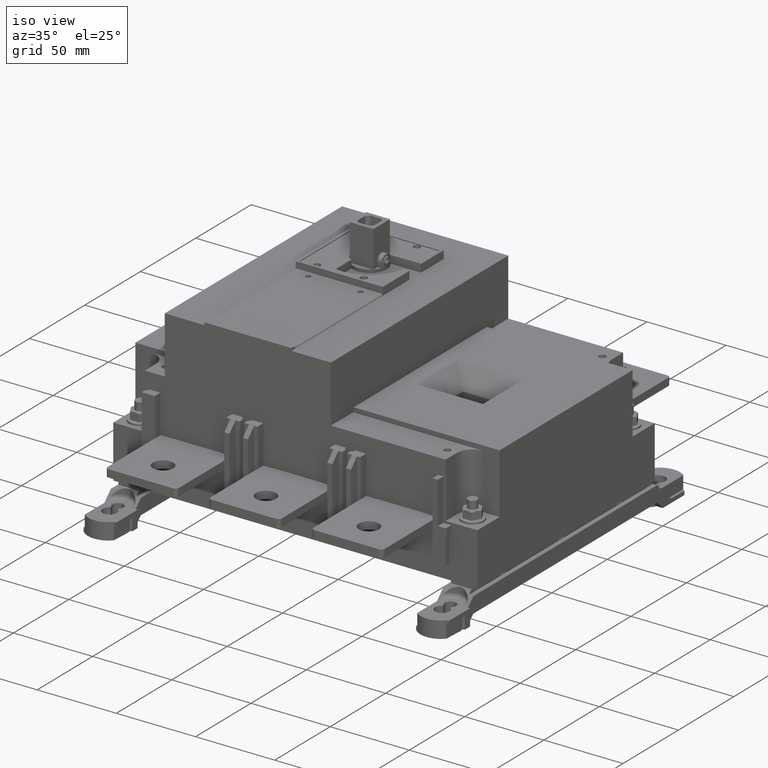
[diagram: clean part render]
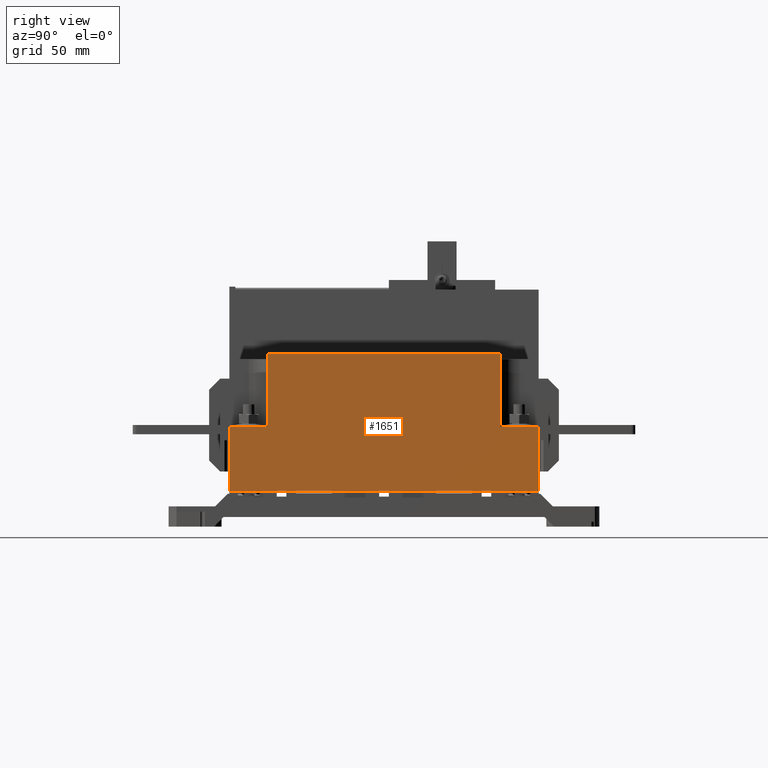
[diagram: tour spotlight — one face highlighted and labeled with its STEP entity id]
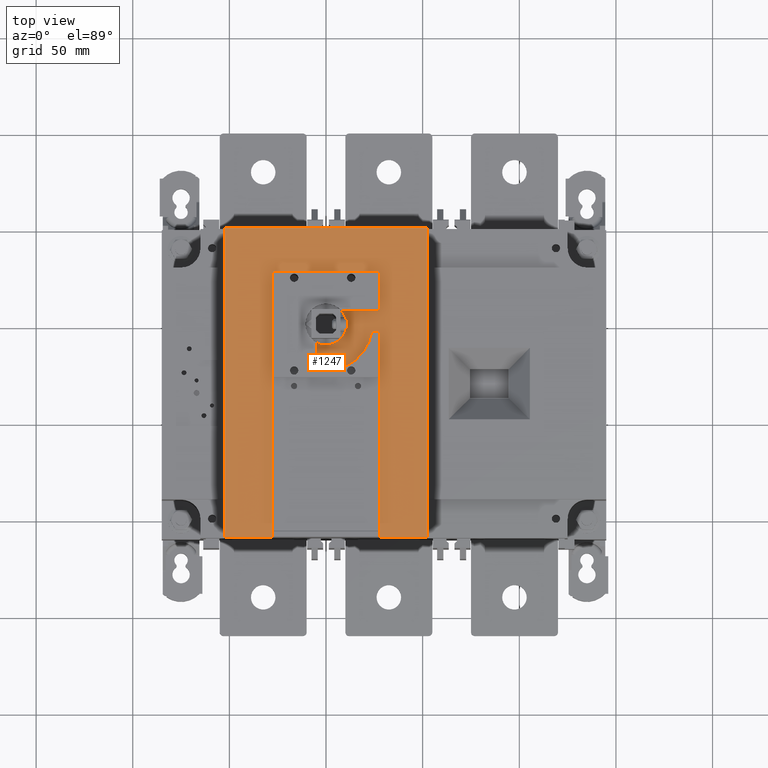
[diagram: tour spotlight — one face highlighted and labeled with its STEP entity id]
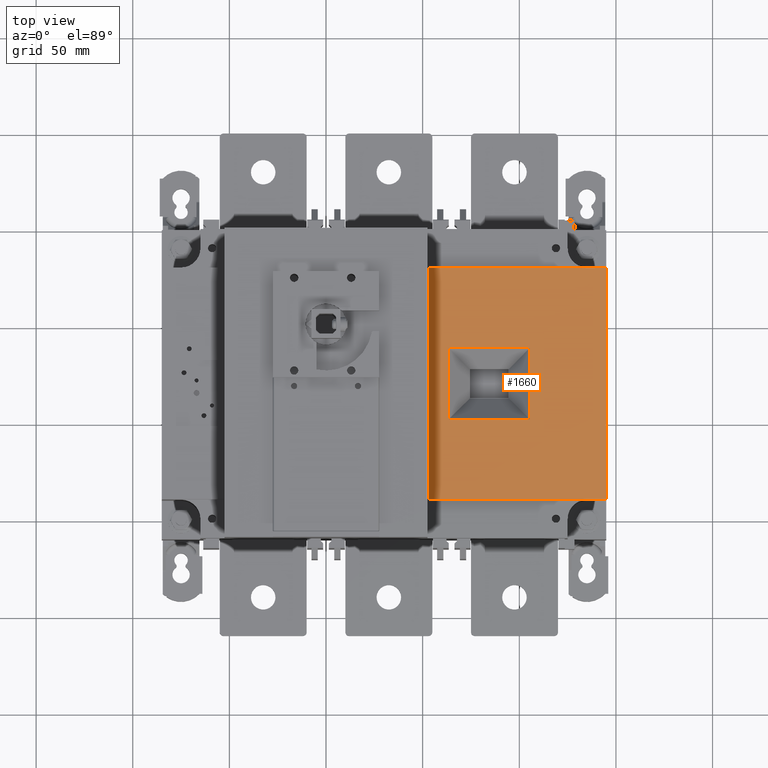
[diagram: tour spotlight — one face highlighted and labeled with its STEP entity id]
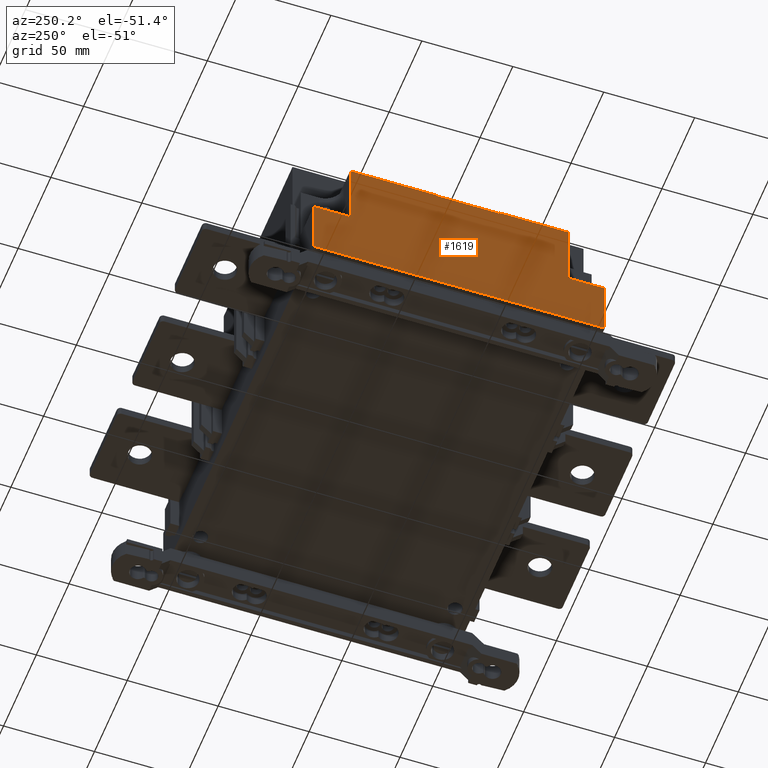
[diagram: tour spotlight — one face highlighted and labeled with its STEP entity id]
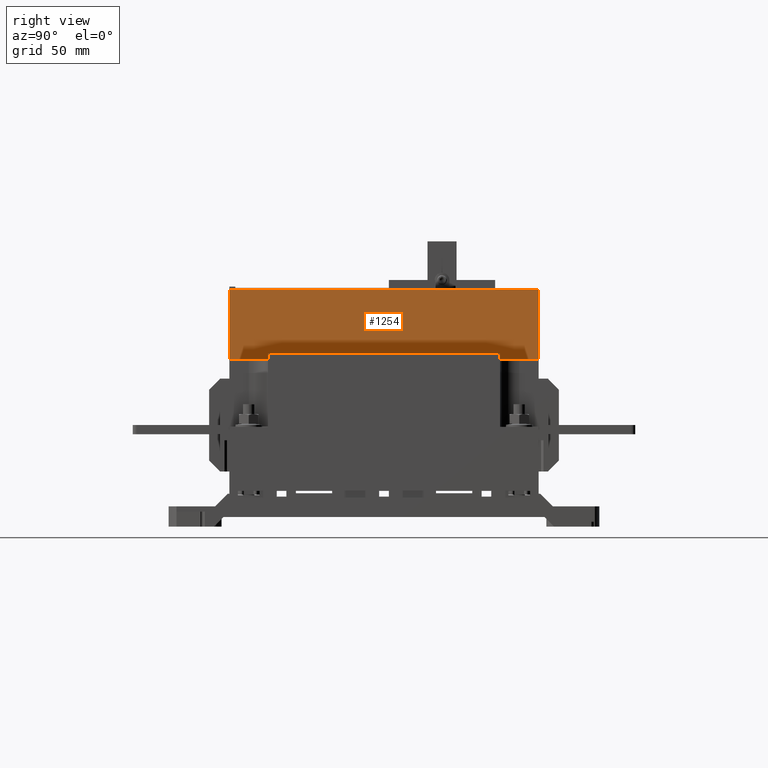
[diagram: tour spotlight — one face highlighted and labeled with its STEP entity id]
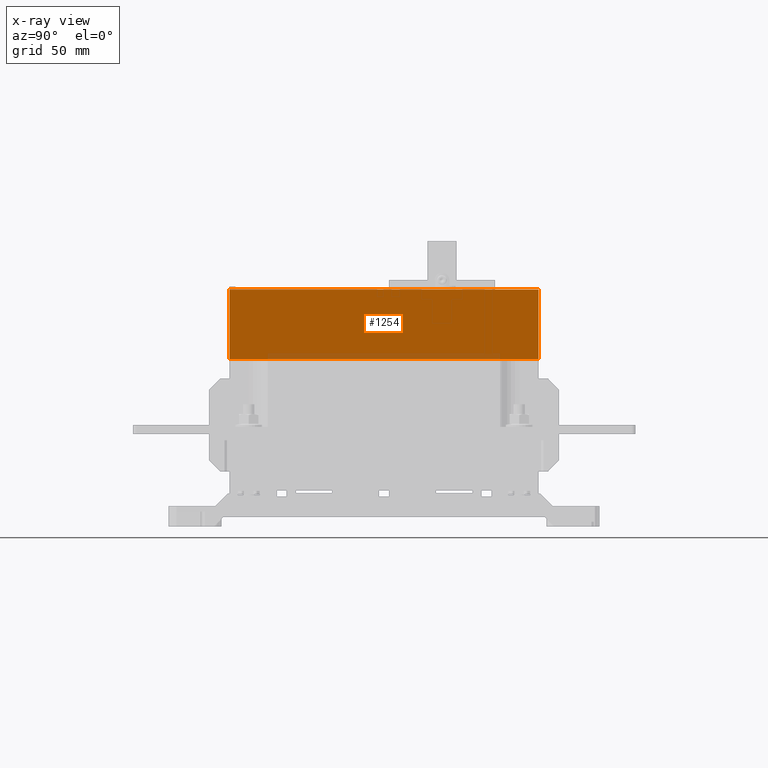
[diagram: x-ray of the same camera — body ghosted, this tour face saturated]
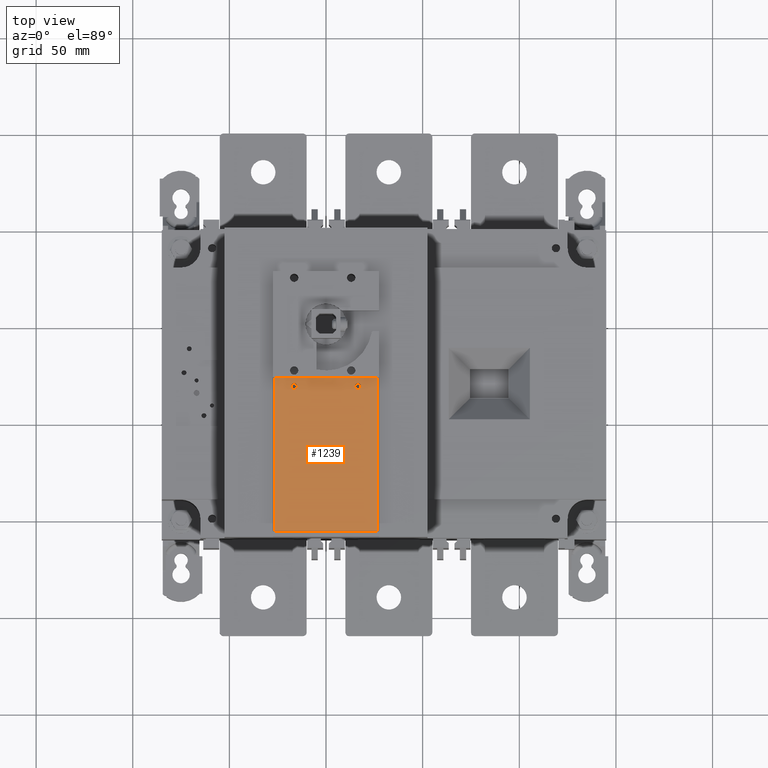
[diagram: tour spotlight — one face highlighted and labeled with its STEP entity id]
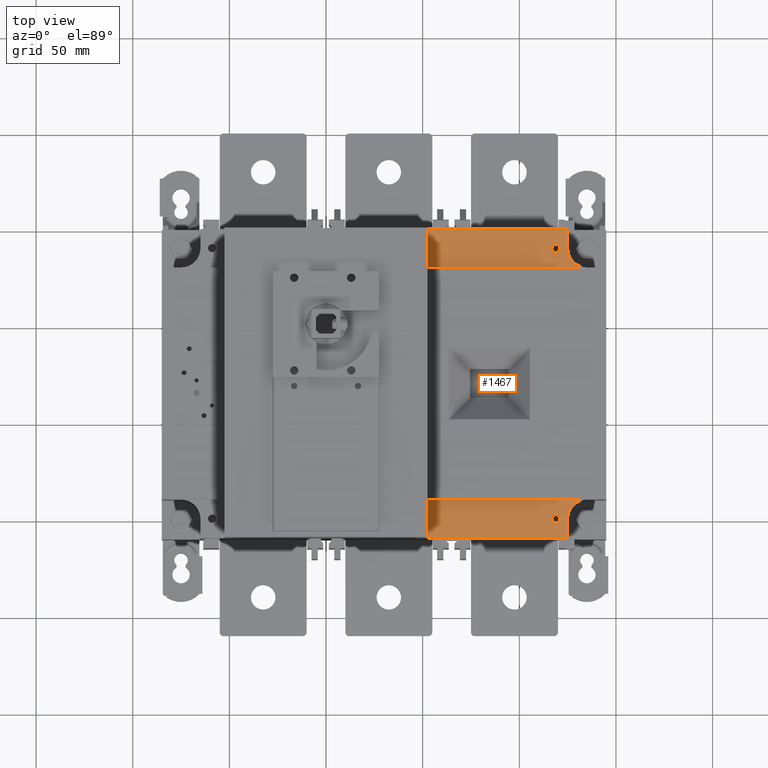
[diagram: tour spotlight — one face highlighted and labeled with its STEP entity id]
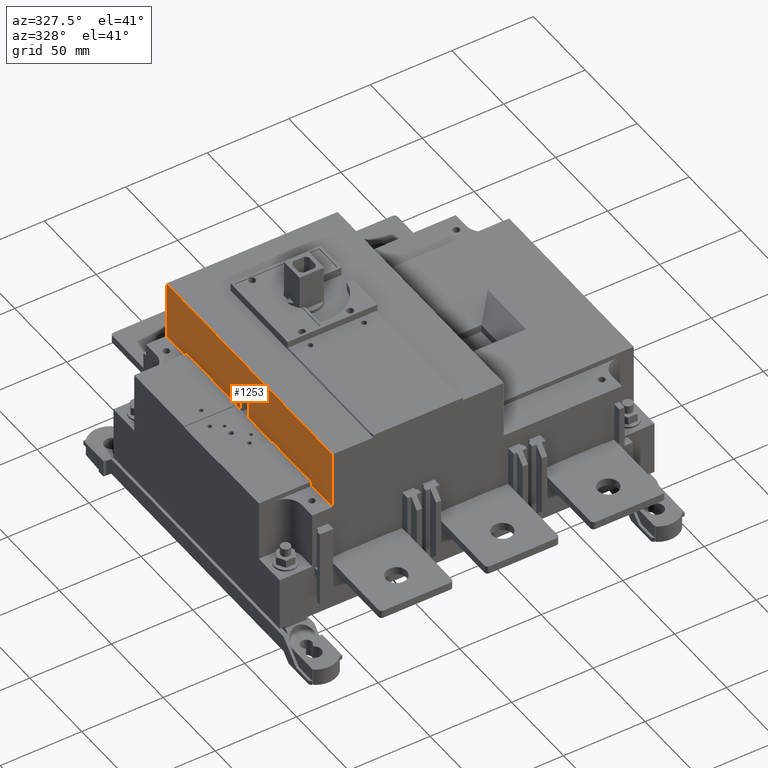
[diagram: tour spotlight — one face highlighted and labeled with its STEP entity id]
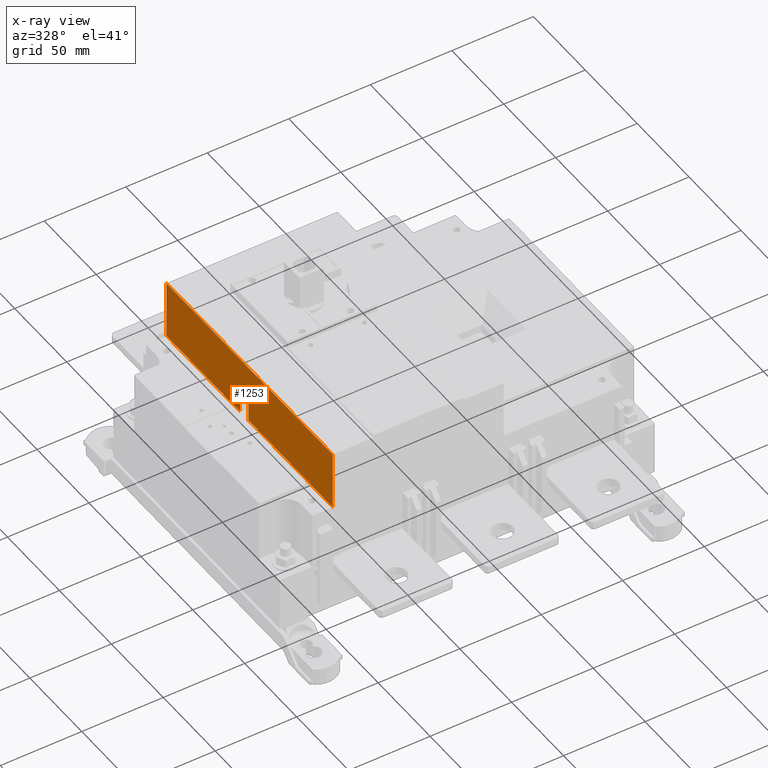
[diagram: x-ray of the same camera — body ghosted, this tour face saturated]
A machine part: a face-by-face anatomy tour. The part has 830 B-rep faces; the first image is the clean iso view, then the 8 largest visible faces are spotlighted one at a time (largest first), each with its STEP entity span.

Face 1 — right view, entity #1651. In plain terms, the highlighted planar face has unit normal (1, 0, 0).
Definition (entity closure, byte-faithful):
#1651=ADVANCED_FACE('',(#2857),#2244,.T.);
#2244=PLANE('',#15998);
#2857=FACE_OUTER_BOUND('',#3858,.T.);
#3858=EDGE_LOOP('',(#7819,#7820,#7821,#7822,#7823,#7824,#7825,#7826));
#7819=ORIENTED_EDGE('',*,*,#10642,.T.);
#7820=ORIENTED_EDGE('',*,*,#11098,.T.);
#7821=ORIENTED_EDGE('',*,*,#10747,.F.);
#7822=ORIENTED_EDGE('',*,*,#11708,.T.);
#7823=ORIENTED_EDGE('',*,*,#11673,.F.);
#7824=ORIENTED_EDGE('',*,*,#11709,.T.);
#7825=ORIENTED_EDGE('',*,*,#11680,.T.);
#7826=ORIENTED_EDGE('',*,*,#11705,.F.);
#9062=VERTEX_POINT('',#22040);
#9063=VERTEX_POINT('',#22042);
#9136=VERTEX_POINT('',#22244);
#9137=VERTEX_POINT('',#22246);
#9759=VERTEX_POINT('',#24288);
#9760=VERTEX_POINT('',#24289);
#9764=VERTEX_POINT('',#24300);
#9765=VERTEX_POINT('',#24302);
#10642=EDGE_CURVE('',#9063,#9062,#12375,.T.);
#10747=EDGE_CURVE('',#9136,#9137,#12475,.T.);
#11098=EDGE_CURVE('',#9062,#9137,#12716,.T.);
#11673=EDGE_CURVE('',#9759,#9760,#13198,.T.);
#11680=EDGE_CURVE('',#9765,#9764,#13205,.T.);
#11705=EDGE_CURVE('',#9063,#9764,#13229,.T.);
#11708=EDGE_CURVE('',#9136,#9760,#13231,.T.);
#11709=EDGE_CURVE('',#9759,#9765,#13232,.T.);
#12375=LINE('',#22041,#13803);
#12475=LINE('',#22245,#13903);
#12716=LINE('',#23110,#14144);
#13198=LINE('',#24287,#14626);
#13205=LINE('',#24301,#14633);
#13229=LINE('',#24352,#14657);
#13231=LINE('',#24359,#14659);
#13232=LINE('',#24360,#14660);
#13803=VECTOR('',#17593,1.);
#13903=VECTOR('',#17753,1.);
#14144=VECTOR('',#18432,1.);
#14626=VECTOR('',#19580,1.);
#14633=VECTOR('',#19589,1.);
#14657=VECTOR('',#19637,1.);
#14659=VECTOR('',#19647,1.);
#14660=VECTOR('',#19648,1.);
#15998=AXIS2_PLACEMENT_3D('',#24361,#19649,#19650);
#17593=DIRECTION('',(0.,0.,-1.));
#17753=DIRECTION('',(0.,0.,-1.));
#18432=DIRECTION('',(0.,1.,0.));
#19580=DIRECTION('',(0.,0.,-1.));
#19589=DIRECTION('',(0.,0.,-1.));
#19637=DIRECTION('',(0.,1.,0.));
#19647=DIRECTION('',(0.,-1.,0.));
#19648=DIRECTION('',(0.,-1.,0.));
#19649=DIRECTION('',(1.,0.,0.));
#19650=DIRECTION('',(0.,1.,0.));
#22040=CARTESIAN_POINT('',(145.,-110.000000000001,-108.500000000001));
#22041=CARTESIAN_POINT('',(145.,-110.,-70.2500000000012));
#22042=CARTESIAN_POINT('',(145.,-110.,-75.4000000000012));
#22244=CARTESIAN_POINT('',(145.,50.,-75.4000000000012));
#22245=CARTESIAN_POINT('',(145.,50.,-70.2500000000012));
#22246=CARTESIAN_POINT('',(145.,50.0000000000009,-108.500000000001));
#23110=CARTESIAN_POINT('',(145.,-101.,-108.500000000001));
#24287=CARTESIAN_POINT('',(145.,30.,-70.2500000000012));
#24288=CARTESIAN_POINT('',(145.,30.,-37.4000000000012));
#24289=CARTESIAN_POINT('',(145.,30.,-75.4000000000012));
#24300=CARTESIAN_POINT('',(145.,-89.9999999999999,-75.4000000000012));
#24301=CARTESIAN_POINT('',(145.,-89.9999999999999,-70.2500000000012));
#24302=CARTESIAN_POINT('',(145.,-90.,-37.4000000000012));
#24352=CARTESIAN_POINT('',(145.,-100.,-75.4000000000012));
#24359=CARTESIAN_POINT('',(145.,-107.5,-75.4000000000012));
#24360=CARTESIAN_POINT('',(145.,-11.5,-37.4000000000012));
#24361=CARTESIAN_POINT('',(145.,-107.5,-70.2500000000012));

Face 2 — top view, entity #1247. In plain terms, the highlighted planar face has unit normal (-0, -0, 1).
Definition (entity closure, byte-faithful):
#1247=ADVANCED_FACE('',(#2511),#1937,.T.);
#1937=PLANE('',#15402);
#2511=FACE_OUTER_BOUND('',#3379,.T.);
#3379=EDGE_LOOP('',(#5809,#5810,#5811,#5812,#5813,#5814,#5815,#5816,#5817,
#5818,#5819,#5820,#5821,#5822,#5823,#5824,#5825,#5826,#5827));
#4240=CIRCLE('',#15375,10.625);
#4253=CIRCLE('',#15400,24.);
#4254=CIRCLE('',#15401,1.);
#5809=ORIENTED_EDGE('',*,*,#10635,.F.);
#5810=ORIENTED_EDGE('',*,*,#10694,.F.);
#5811=ORIENTED_EDGE('',*,*,#10597,.F.);
#5812=ORIENTED_EDGE('',*,*,#10695,.F.);
#5813=ORIENTED_EDGE('',*,*,#10696,.T.);
#5814=ORIENTED_EDGE('',*,*,#10697,.T.);
#5815=ORIENTED_EDGE('',*,*,#10698,.T.);
#5816=ORIENTED_EDGE('',*,*,#10582,.T.);
#5817=ORIENTED_EDGE('',*,*,#10699,.T.);
#5818=ORIENTED_EDGE('',*,*,#10700,.F.);
#5819=ORIENTED_EDGE('',*,*,#10701,.T.);
#5820=ORIENTED_EDGE('',*,*,#10702,.F.);
#5821=ORIENTED_EDGE('',*,*,#10703,.T.);
#5822=ORIENTED_EDGE('',*,*,#10601,.T.);
#5823=ORIENTED_EDGE('',*,*,#10704,.F.);
#5824=ORIENTED_EDGE('',*,*,#10647,.T.);
#5825=ORIENTED_EDGE('',*,*,#10705,.F.);
#5826=ORIENTED_EDGE('',*,*,#10706,.T.);
#5827=ORIENTED_EDGE('',*,*,#10707,.T.);
#9010=VERTEX_POINT('',#21919);
#9011=VERTEX_POINT('',#21921);
#9025=VERTEX_POINT('',#21953);
#9026=VERTEX_POINT('',#21954);
#9027=VERTEX_POINT('',#21959);
#9028=VERTEX_POINT('',#21961);
#9054=VERTEX_POINT('',#22025);
#9056=VERTEX_POINT('',#22028);
#9067=VERTEX_POINT('',#22050);
#9068=VERTEX_POINT('',#22052);
#9114=VERTEX_POINT('',#22147);
#9115=VERTEX_POINT('',#22149);
#9116=VERTEX_POINT('',#22151);
#9117=VERTEX_POINT('',#22154);
#9118=VERTEX_POINT('',#22156);
#9119=VERTEX_POINT('',#22158);
#9120=VERTEX_POINT('',#22160);
#9121=VERTEX_POINT('',#22164);
#9122=VERTEX_POINT('',#22166);
#10582=EDGE_CURVE('',#9011,#9010,#4240,.T.);
#10597=EDGE_CURVE('',#9025,#9026,#12340,.T.);
#10601=EDGE_CURVE('',#9028,#9027,#12341,.T.);
#10635=EDGE_CURVE('',#9054,#9056,#12368,.T.);
#10647=EDGE_CURVE('',#9068,#9067,#12380,.T.);
#10694=EDGE_CURVE('',#9026,#9054,#12427,.T.);
#10695=EDGE_CURVE('',#9114,#9025,#12428,.T.);
#10696=EDGE_CURVE('',#9114,#9115,#12429,.T.);
#10697=EDGE_CURVE('',#9115,#9116,#12430,.T.);
#10698=EDGE_CURVE('',#9116,#9011,#12431,.T.);
#10699=EDGE_CURVE('',#9010,#9117,#12432,.T.);
#10700=EDGE_CURVE('',#9118,#9117,#4253,.T.);
#10701=EDGE_CURVE('',#9118,#9119,#4254,.T.);
#10702=EDGE_CURVE('',#9120,#9119,#12433,.T.);
#10703=EDGE_CURVE('',#9120,#9028,#12434,.T.);
#10704=EDGE_CURVE('',#9068,#9027,#12435,.T.);
#10705=EDGE_CURVE('',#9121,#9067,#12436,.T.);
#10706=EDGE_CURVE('',#9121,#9122,#12437,.T.);
#10707=EDGE_CURVE('',#9122,#9056,#12438,.T.);
#12340=LINE('',#21952,#13768);
#12341=LINE('',#21960,#13769);
#12368=LINE('',#22027,#13796);
#12380=LINE('',#22051,#13808);
#12427=LINE('',#22145,#13855);
#12428=LINE('',#22146,#13856);
#12429=LINE('',#22148,#13857);
#12430=LINE('',#22150,#13858);
#12431=LINE('',#22152,#13859);
#12432=LINE('',#22153,#13860);
#12433=LINE('',#22159,#13861);
#12434=LINE('',#22161,#13862);
#12435=LINE('',#22162,#13863);
#12436=LINE('',#22163,#13864);
#12437=LINE('',#22165,#13865);
#12438=LINE('',#22167,#13866);
#13768=VECTOR('',#17526,1.);
#13769=VECTOR('',#17535,1.);
#13796=VECTOR('',#17586,1.);
#13808=VECTOR('',#17598,1.);
#13855=VECTOR('',#17647,1.);
#13856=VECTOR('',#17648,1.);
#13857=VECTOR('',#17649,1.);
#13858=VECTOR('',#17650,1.);
#13859=VECTOR('',#17651,1.);
#13860=VECTOR('',#17652,1.);
#13861=VECTOR('',#17657,1.);
#13862=VECTOR('',#17658,1.);
#13863=VECTOR('',#17659,1.);
#13864=VECTOR('',#17660,1.);
#13865=VECTOR('',#17661,1.);
#13866=VECTOR('',#17662,1.);
#15375=AXIS2_PLACEMENT_3D('',#21920,#17500,#17501);
#15400=AXIS2_PLACEMENT_3D('',#22155,#17653,#17654);
#15401=AXIS2_PLACEMENT_3D('',#22157,#17655,#17656);
#15402=AXIS2_PLACEMENT_3D('',#22168,#17663,#17664);
#17500=DIRECTION('',(4.11996825544495E-016,1.14659099476019E-015,-1.));
#17501=DIRECTION('',(-1.,2.84251109024637E-015,-4.08170229641602E-016));
#17526=DIRECTION('',(-2.84251109024637E-015,-1.,-1.42125554512318E-015));
#17535=DIRECTION('',(-2.84251109024637E-015,-1.,-1.42125554512318E-015));
#17586=DIRECTION('',(-1.,2.84251109024637E-015,1.68155815718978E-044));
#17598=DIRECTION('',(1.,-2.84251109024637E-015,-1.68155815718978E-044));
#17647=DIRECTION('',(0.,-1.,0.));
#17648=DIRECTION('',(-2.84251109024637E-015,-1.,-1.42125554512318E-015));
#17649=DIRECTION('',(1.,-2.84251109024637E-015,0.));
#17650=DIRECTION('',(-2.84251109024637E-015,-1.,-1.42125554512318E-015));
#17651=DIRECTION('',(-1.,2.84251109024637E-015,0.));
#17652=DIRECTION('',(6.63139205322163E-015,-1.,-1.42125554512318E-015));
#17653=DIRECTION('',(4.0399346490868E-030,1.42125554512318E-015,-1.));
#17654=DIRECTION('',(-2.84251109024637E-015,-1.,-1.40946282423116E-015));
#17655=DIRECTION('',(4.0399346490868E-030,1.42125554512318E-015,-1.));
#17656=DIRECTION('',(3.46944695195361E-015,1.,1.73472347597681E-015));
#17657=DIRECTION('',(-1.,2.84251109024637E-015,0.));
#17658=DIRECTION('',(-2.84251109024637E-015,-1.,-1.42125554512318E-015));
#17659=DIRECTION('',(-1.15648231731787E-015,1.,0.));
#17660=DIRECTION('',(0.,-1.,-5.18885809451032E-015));
#17661=DIRECTION('',(-1.,-2.84251109024637E-015,-2.94987733587205E-029));
#17662=DIRECTION('',(0.,-1.,-5.18885809451032E-015));
#17663=DIRECTION('',(-1.47493866793602E-029,-5.18885809451032E-015,1.));
#17664=DIRECTION('',(2.84494650060196E-015,1.,5.18855791664663E-015));
#21919=CARTESIAN_POINT('',(-5.,-9.375,-4.4));
#21920=CARTESIAN_POINT('',(0.,0.,-4.4));
#21921=CARTESIAN_POINT('',(7.99316113937429,7.,-4.4));
#21952=CARTESIAN_POINT('',(-27.5,-110.,-4.4));
#21953=CARTESIAN_POINT('',(-27.4999999999999,-27.4999999999999,-4.39999999999986));
#21954=CARTESIAN_POINT('',(-27.4999971882707,-106.718172500889,-4.39832317197553));
#21959=CARTESIAN_POINT('',(27.4999971909517,-106.718172358286,-4.39832398071583));
#21960=CARTESIAN_POINT('',(27.5,38.,-4.4));
#21961=CARTESIAN_POINT('',(27.4999999999998,-27.5000000000001,-4.39999999999998));
#22025=CARTESIAN_POINT('',(-27.5,-110.,-4.40000000000011));
#22027=CARTESIAN_POINT('',(-39.0000000000001,-110.,-4.40000000000011));
#22028=CARTESIAN_POINT('',(-52.5,-110.,-4.40000000000011));
#22050=CARTESIAN_POINT('',(52.5,-110.,-4.40000000000011));
#22051=CARTESIAN_POINT('',(-1.65637320612558E-028,-110.,-4.40000000000011));
#22052=CARTESIAN_POINT('',(27.4999999999997,-110.,-4.40000000000011));
#22145=CARTESIAN_POINT('',(-27.5,-107.,-4.4));
#22146=CARTESIAN_POINT('',(-27.5,-110.,-4.4));
#22147=CARTESIAN_POINT('',(-27.4999999999996,27.5000000000001,-4.39999999999981));
#22148=CARTESIAN_POINT('',(40.5,27.5,-4.4));
#22149=CARTESIAN_POINT('',(27.5000000000001,27.5,-4.4));
#22150=CARTESIAN_POINT('',(27.5,3.5,-4.4));
#22151=CARTESIAN_POINT('',(27.5,7.,-4.4));
#22152=CARTESIAN_POINT('',(0.,7.,-4.4));
#22153=CARTESIAN_POINT('',(-5.,-11.,-4.4));
#22154=CARTESIAN_POINT('',(-5.,-23.4733891886113,-4.4));
#22155=CARTESIAN_POINT('',(0.,0.,-4.4));
#22156=CARTESIAN_POINT('',(23.6079986445274,-4.32,-4.4));
#22157=CARTESIAN_POINT('',(24.5916652547162,-4.5,-4.4));
#22158=CARTESIAN_POINT('',(24.5916652547162,-3.5,-4.4));
#22159=CARTESIAN_POINT('',(25.621710070584,-3.5,-4.4));
#22160=CARTESIAN_POINT('',(27.5,-3.5,-4.4));
#22161=CARTESIAN_POINT('',(27.5,38.,-4.4));
#22162=CARTESIAN_POINT('',(27.5,-110.,-4.4));
#22163=CARTESIAN_POINT('',(52.5,-88.5,-4.4));
#22164=CARTESIAN_POINT('',(52.5,50.0000000000002,-4.39999999999928));
#22165=CARTESIAN_POINT('',(-39.0000000000004,50.,-4.39999999999928));
#22166=CARTESIAN_POINT('',(-52.5,49.9999999999999,-4.39999999999928));
#22167=CARTESIAN_POINT('',(-52.5,49.9999999999998,-4.39999999999928));
#22168=CARTESIAN_POINT('',(-39.,-88.5,-4.4));

Face 3 — top view, entity #1660. In plain terms, the highlighted planar face has unit normal (0, 0, -1).
Definition (entity closure, byte-faithful):
#901=FACE_BOUND('',#3874,.T.);
#902=FACE_BOUND('',#3875,.T.);
#1660=ADVANCED_FACE('',(#901,#902),#2251,.F.);
#2251=PLANE('',#16009);
#3874=EDGE_LOOP('',(#7868,#7869,#7870,#7871));
#3875=EDGE_LOOP('',(#7872,#7873,#7874,#7875));
#7868=ORIENTED_EDGE('',*,*,#11690,.T.);
#7869=ORIENTED_EDGE('',*,*,#11687,.T.);
#7870=ORIENTED_EDGE('',*,*,#11686,.T.);
#7871=ORIENTED_EDGE('',*,*,#11694,.T.);
#7872=ORIENTED_EDGE('',*,*,#11677,.T.);
#7873=ORIENTED_EDGE('',*,*,#11717,.T.);
#7874=ORIENTED_EDGE('',*,*,#11681,.F.);
#7875=ORIENTED_EDGE('',*,*,#11709,.F.);
#9759=VERTEX_POINT('',#24288);
#9762=VERTEX_POINT('',#24294);
#9765=VERTEX_POINT('',#24302);
#9766=VERTEX_POINT('',#24304);
#9767=VERTEX_POINT('',#24308);
#9770=VERTEX_POINT('',#24313);
#9771=VERTEX_POINT('',#24317);
#9773=VERTEX_POINT('',#24323);
#11677=EDGE_CURVE('',#9759,#9762,#13202,.T.);
#11681=EDGE_CURVE('',#9765,#9766,#13206,.T.);
#11686=EDGE_CURVE('',#9767,#9770,#13211,.T.);
#11687=EDGE_CURVE('',#9771,#9767,#13212,.T.);
#11690=EDGE_CURVE('',#9773,#9771,#13215,.T.);
#11694=EDGE_CURVE('',#9770,#9773,#13219,.T.);
#11709=EDGE_CURVE('',#9759,#9765,#13232,.T.);
#11717=EDGE_CURVE('',#9762,#9766,#13238,.T.);
#13202=LINE('',#24295,#14630);
#13206=LINE('',#24303,#14634);
#13211=LINE('',#24314,#14639);
#13212=LINE('',#24316,#14640);
#13215=LINE('',#24322,#14643);
#13219=LINE('',#24329,#14647);
#13232=LINE('',#24360,#14660);
#13238=LINE('',#24378,#14666);
#14630=VECTOR('',#19584,1.);
#14634=VECTOR('',#19590,1.);
#14639=VECTOR('',#19597,1.);
#14640=VECTOR('',#19600,1.);
#14643=VECTOR('',#19605,1.);
#14647=VECTOR('',#19611,1.);
#14660=VECTOR('',#19648,1.);
#14666=VECTOR('',#19672,1.);
#16009=AXIS2_PLACEMENT_3D('',#24381,#19677,#19678);
#19584=DIRECTION('',(-1.,0.,0.));
#19590=DIRECTION('',(-1.,-8.88178419700125E-016,0.));
#19597=DIRECTION('',(0.,-1.,0.));
#19600=DIRECTION('',(1.,0.,0.));
#19605=DIRECTION('',(0.,1.,0.));
#19611=DIRECTION('',(-1.,0.,0.));
#19648=DIRECTION('',(0.,-1.,0.));
#19672=DIRECTION('',(0.,-1.,0.));
#19677=DIRECTION('',(0.,0.,-1.));
#19678=DIRECTION('',(-1.,0.,0.));
#24288=CARTESIAN_POINT('',(145.,30.,-37.4000000000012));
#24294=CARTESIAN_POINT('',(52.9,30.,-37.4000000000012));
#24295=CARTESIAN_POINT('',(92.,30.,-37.4000000000012));
#24302=CARTESIAN_POINT('',(145.,-90.,-37.4000000000012));
#24303=CARTESIAN_POINT('',(91.,-90.,-37.4000000000012));
#24304=CARTESIAN_POINT('',(52.9,-90.,-37.4000000000012));
#24308=CARTESIAN_POINT('',(105.5,-11.5,-37.4000000000012));
#24313=CARTESIAN_POINT('',(105.5,-48.5,-37.4000000000012));
#24314=CARTESIAN_POINT('',(105.5,-30.,-37.4000000000012));
#24316=CARTESIAN_POINT('',(91.,-11.5,-37.4000000000012));
#24317=CARTESIAN_POINT('',(63.5,-11.5,-37.4000000000012));
#24322=CARTESIAN_POINT('',(63.5,-30.,-37.4000000000012));
#24323=CARTESIAN_POINT('',(63.5,-48.5,-37.4000000000012));
#24329=CARTESIAN_POINT('',(84.5,-48.5,-37.4000000000012));
#24360=CARTESIAN_POINT('',(145.,-11.5,-37.4000000000012));
#24378=CARTESIAN_POINT('',(52.9,-108.5,-37.4000000000012));
#24381=CARTESIAN_POINT('',(63.5,-11.5,-37.4000000000012));

Face 4 — auxiliary view, entity #1619. In plain terms, the highlighted planar face has unit normal (-1, 0, 0).
Definition (entity closure, byte-faithful):
#1619=ADVANCED_FACE('',(#2827),#2214,.T.);
#2214=PLANE('',#15964);
#2827=FACE_OUTER_BOUND('',#3824,.T.);
#3824=EDGE_LOOP('',(#7673,#7674,#7675,#7676,#7677,#7678,#7679,#7680,#7681,
#7682,#7683,#7684));
#7673=ORIENTED_EDGE('',*,*,#10749,.T.);
#7674=ORIENTED_EDGE('',*,*,#11097,.F.);
#7675=ORIENTED_EDGE('',*,*,#10640,.F.);
#7676=ORIENTED_EDGE('',*,*,#11581,.T.);
#7677=ORIENTED_EDGE('',*,*,#11573,.F.);
#7678=ORIENTED_EDGE('',*,*,#11594,.F.);
#7679=ORIENTED_EDGE('',*,*,#11593,.T.);
#7680=ORIENTED_EDGE('',*,*,#11636,.T.);
#7681=ORIENTED_EDGE('',*,*,#11589,.F.);
#7682=ORIENTED_EDGE('',*,*,#11635,.F.);
#7683=ORIENTED_EDGE('',*,*,#11621,.T.);
#7684=ORIENTED_EDGE('',*,*,#11628,.F.);
#9060=VERTEX_POINT('',#22036);
#9061=VERTEX_POINT('',#22038);
#9138=VERTEX_POINT('',#22248);
#9139=VERTEX_POINT('',#22250);
#9700=VERTEX_POINT('',#24087);
#9701=VERTEX_POINT('',#24088);
#9709=VERTEX_POINT('',#24114);
#9712=VERTEX_POINT('',#24119);
#9714=VERTEX_POINT('',#24124);
#9716=VERTEX_POINT('',#24128);
#9732=VERTEX_POINT('',#24184);
#9733=VERTEX_POINT('',#24186);
#10640=EDGE_CURVE('',#9060,#9061,#12373,.T.);
#10749=EDGE_CURVE('',#9139,#9138,#12477,.T.);
#11097=EDGE_CURVE('',#9061,#9138,#12715,.T.);
#11573=EDGE_CURVE('',#9700,#9701,#13104,.T.);
#11581=EDGE_CURVE('',#9060,#9701,#13110,.T.);
#11589=EDGE_CURVE('',#9712,#9709,#13117,.T.);
#11593=EDGE_CURVE('',#9714,#9716,#13121,.T.);
#11594=EDGE_CURVE('',#9714,#9700,#13122,.T.);
#11621=EDGE_CURVE('',#9733,#9732,#13149,.T.);
#11628=EDGE_CURVE('',#9139,#9732,#13154,.T.);
#11635=EDGE_CURVE('',#9733,#9712,#13160,.T.);
#11636=EDGE_CURVE('',#9716,#9709,#13161,.T.);
#12373=LINE('',#22037,#13801);
#12477=LINE('',#22249,#13905);
#12715=LINE('',#23109,#14143);
#13104=LINE('',#24086,#14532);
#13110=LINE('',#24103,#14538);
#13117=LINE('',#24120,#14545);
#13121=LINE('',#24129,#14549);
#13122=LINE('',#24131,#14550);
#13149=LINE('',#24185,#14577);
#13154=LINE('',#24199,#14582);
#13160=LINE('',#24211,#14588);
#13161=LINE('',#24213,#14589);
#13801=VECTOR('',#17591,1.);
#13905=VECTOR('',#17755,1.);
#14143=VECTOR('',#18431,1.);
#14532=VECTOR('',#19390,1.);
#14538=VECTOR('',#19402,1.);
#14545=VECTOR('',#19419,1.);
#14549=VECTOR('',#19425,1.);
#14550=VECTOR('',#19428,1.);
#14577=VECTOR('',#19477,1.);
#14582=VECTOR('',#19490,1.);
#14588=VECTOR('',#19506,1.);
#14589=VECTOR('',#19509,1.);
#15964=AXIS2_PLACEMENT_3D('',#24214,#19510,#19511);
#17591=DIRECTION('',(0.,0.,-1.));
#17755=DIRECTION('',(0.,0.,-1.));
#18431=DIRECTION('',(0.,1.,0.));
#19390=DIRECTION('',(0.,0.,-1.));
#19402=DIRECTION('',(0.,1.,0.));
#19419=DIRECTION('',(0.,0.,-1.));
#19425=DIRECTION('',(0.,0.,-1.));
#19428=DIRECTION('',(0.,-1.,0.));
#19477=DIRECTION('',(0.,0.,-1.));
#19490=DIRECTION('',(0.,-1.,0.));
#19506=DIRECTION('',(0.,-1.,0.));
#19509=DIRECTION('',(0.,1.,0.));
#19510=DIRECTION('',(-1.,0.,0.));
#19511=DIRECTION('',(0.,-1.,0.));
#22036=CARTESIAN_POINT('',(-85.,-109.999999999996,-75.4000000000012));
#22037=CARTESIAN_POINT('',(-85.,-109.999999999996,-79.6000000000012));
#22038=CARTESIAN_POINT('',(-85.,-110.,-108.500000000001));
#22248=CARTESIAN_POINT('',(-85.,50.0000000000002,-108.500000000001));
#22249=CARTESIAN_POINT('',(-85.,50.0000000000346,-61.4000000000012));
#22250=CARTESIAN_POINT('',(-85.,50.0000000000346,-75.4000000000012));
#23109=CARTESIAN_POINT('',(-85.,-93.5,-108.500000000001));
#24086=CARTESIAN_POINT('',(-85.,-90.0000000000001,-69.6500000000012));
#24087=CARTESIAN_POINT('',(-85.,-89.9999999999977,-37.4000000000012));
#24088=CARTESIAN_POINT('',(-85.,-90.0000000000001,-75.4000000000012));
#24103=CARTESIAN_POINT('',(-85.,-100.,-75.4000000000012));
#24114=CARTESIAN_POINT('',(-85.,-18.,-37.9000000000012));
#24119=CARTESIAN_POINT('',(-85.,-18.,-37.4000000000012));
#24120=CARTESIAN_POINT('',(-85.,-18.,-53.4000000000012));
#24124=CARTESIAN_POINT('',(-85.,-52.,-37.4000000000012));
#24128=CARTESIAN_POINT('',(-85.,-52.,-37.9000000000012));
#24129=CARTESIAN_POINT('',(-85.,-52.,-38.9000000000012));
#24131=CARTESIAN_POINT('',(-85.,-47.4,-37.4000000000012));
#24184=CARTESIAN_POINT('',(-85.,30.,-75.4000000000012));
#24185=CARTESIAN_POINT('',(-85.,30.,-84.1000000000012));
#24186=CARTESIAN_POINT('',(-85.,30.,-37.4000000000012));
#24199=CARTESIAN_POINT('',(-85.,40.,-75.4000000000012));
#24211=CARTESIAN_POINT('',(-85.,-23.6,-37.4000000000012));
#24213=CARTESIAN_POINT('',(-85.,-30.,-37.9000000000012));
#24214=CARTESIAN_POINT('',(-85.,-107.5,-70.2500000000012));

Face 5 — right view, entity #1254. An x-ray twin of the same camera follows (body ghosted, this face saturated) — the face is partly hidden behind the body. In plain terms, the highlighted planar face has unit normal (-1, 0, 0).
Definition (entity closure, byte-faithful):
#1254=ADVANCED_FACE('',(#2518),#1944,.F.);
#1944=PLANE('',#15409);
#2518=FACE_OUTER_BOUND('',#3386,.T.);
#3386=EDGE_LOOP('',(#5856,#5857,#5858,#5859));
#5856=ORIENTED_EDGE('',*,*,#10646,.T.);
#5857=ORIENTED_EDGE('',*,*,#10722,.T.);
#5858=ORIENTED_EDGE('',*,*,#10723,.F.);
#5859=ORIENTED_EDGE('',*,*,#10705,.T.);
#9066=VERTEX_POINT('',#22048);
#9067=VERTEX_POINT('',#22050);
#9121=VERTEX_POINT('',#22164);
#9130=VERTEX_POINT('',#22197);
#10646=EDGE_CURVE('',#9067,#9066,#12379,.T.);
#10705=EDGE_CURVE('',#9121,#9067,#12436,.T.);
#10722=EDGE_CURVE('',#9066,#9130,#12453,.T.);
#10723=EDGE_CURVE('',#9121,#9130,#12454,.T.);
#12379=LINE('',#22049,#13807);
#12436=LINE('',#22163,#13864);
#12453=LINE('',#22196,#13881);
#12454=LINE('',#22198,#13882);
#13807=VECTOR('',#17597,1.);
#13864=VECTOR('',#17660,1.);
#13881=VECTOR('',#17691,1.);
#13882=VECTOR('',#17692,1.);
#15409=AXIS2_PLACEMENT_3D('',#22199,#17693,#17694);
#17597=DIRECTION('',(0.,1.42125554512318E-015,-1.));
#17660=DIRECTION('',(0.,-1.,-5.18885809451032E-015));
#17691=DIRECTION('',(0.,1.,0.));
#17692=DIRECTION('',(0.,-1.42125554512318E-015,-1.));
#17693=DIRECTION('',(-1.,0.,0.));
#17694=DIRECTION('',(0.,0.,1.));
#22048=CARTESIAN_POINT('',(52.5,-109.999999999999,-40.4));
#22049=CARTESIAN_POINT('',(52.5,-110.,-45.4));
#22050=CARTESIAN_POINT('',(52.5,-110.,-4.40000000000011));
#22163=CARTESIAN_POINT('',(52.5,-88.5,-4.4));
#22164=CARTESIAN_POINT('',(52.5,50.0000000000002,-4.39999999999928));
#22196=CARTESIAN_POINT('',(52.5,50.,-40.4));
#22197=CARTESIAN_POINT('',(52.5,50.,-40.4));
#22198=CARTESIAN_POINT('',(52.5,50.0000000000002,-37.6499999999988));
#22199=CARTESIAN_POINT('',(52.5,50.,-37.6499999999988));

Face 6 — top view, entity #1239. In plain terms, the highlighted planar face has unit normal (-0, -0, 1).
Definition (entity closure, byte-faithful):
#743=FACE_BOUND('',#3359,.T.);
#744=FACE_BOUND('',#3360,.T.);
#745=FACE_BOUND('',#3361,.T.);
#1239=ADVANCED_FACE('',(#743,#744,#745),#1931,.T.);
#1931=PLANE('',#15382);
#3359=EDGE_LOOP('',(#5698));
#3360=EDGE_LOOP('',(#5699));
#3361=EDGE_LOOP('',(#5700,#5701,#5702,#5703));
#4243=CIRCLE('',#15380,1.6);
#4244=CIRCLE('',#15381,1.6);
#5698=ORIENTED_EDGE('',*,*,#10591,.F.);
#5699=ORIENTED_EDGE('',*,*,#10592,.F.);
#5700=ORIENTED_EDGE('',*,*,#10593,.T.);
#5701=ORIENTED_EDGE('',*,*,#10594,.T.);
#5702=ORIENTED_EDGE('',*,*,#10595,.T.);
#5703=ORIENTED_EDGE('',*,*,#10596,.T.);
#9019=VERTEX_POINT('',#21940);
#9020=VERTEX_POINT('',#21942);
#9021=VERTEX_POINT('',#21944);
#9022=VERTEX_POINT('',#21945);
#9023=VERTEX_POINT('',#21947);
#9024=VERTEX_POINT('',#21949);
#10591=EDGE_CURVE('',#9019,#9019,#4243,.T.);
#10592=EDGE_CURVE('',#9020,#9020,#4244,.T.);
#10593=EDGE_CURVE('',#9021,#9022,#12336,.T.);
#10594=EDGE_CURVE('',#9022,#9023,#12337,.T.);
#10595=EDGE_CURVE('',#9023,#9024,#12338,.T.);
#10596=EDGE_CURVE('',#9024,#9021,#12339,.T.);
#12336=LINE('',#21943,#13764);
#12337=LINE('',#21946,#13765);
#12338=LINE('',#21948,#13766);
#12339=LINE('',#21950,#13767);
#13764=VECTOR('',#17520,1.);
#13765=VECTOR('',#17521,1.);
#13766=VECTOR('',#17522,1.);
#13767=VECTOR('',#17523,1.);
#15380=AXIS2_PLACEMENT_3D('',#21939,#17516,#17517);
#15381=AXIS2_PLACEMENT_3D('',#21941,#17518,#17519);
#15382=AXIS2_PLACEMENT_3D('',#21951,#17524,#17525);
#17516=DIRECTION('',(-9.52503329912382E-015,-1.42125554512328E-015,1.));
#17517=DIRECTION('',(1.,0.,9.48676900924816E-015));
#17518=DIRECTION('',(-9.52503329912382E-015,-1.42125554512328E-015,1.));
#17519=DIRECTION('',(1.,0.,9.48676900924816E-015));
#17520=DIRECTION('',(-2.84251109024637E-015,-1.,-1.42125554512331E-015));
#17521=DIRECTION('',(1.,-1.67952036278211E-015,9.52503329912382E-015));
#17522=DIRECTION('',(-6.63139205322163E-015,1.,1.42125554512322E-015));
#17523=DIRECTION('',(-1.,2.84251109024637E-015,-9.52503329912381E-015));
#17524=DIRECTION('',(-9.52503329912382E-015,-1.42125554512328E-015,1.));
#17525=DIRECTION('',(-6.63141416779034E-015,1.,1.421172207694E-015));
#21939=CARTESIAN_POINT('',(-16.5,-32.,-3.40000000000015));
#21940=CARTESIAN_POINT('',(-14.9,-32.,-3.40000000000014));
#21941=CARTESIAN_POINT('',(16.5,-32.,-3.39999999999984));
#21942=CARTESIAN_POINT('',(18.1,-32.,-3.39999999999982));
#21943=CARTESIAN_POINT('',(-26.5,-42.5,-3.4));
#21944=CARTESIAN_POINT('',(-26.5,-27.4999999999999,-3.39999999999998));
#21945=CARTESIAN_POINT('',(-26.5,-106.894203811575,-3.40000000000011));
#21946=CARTESIAN_POINT('',(1.24999999999988,-106.894203811575,-3.40000000000011));
#21947=CARTESIAN_POINT('',(26.5000000000005,-106.894203811575,-3.40000000000011));
#21948=CARTESIAN_POINT('',(26.5,-42.5,-3.4));
#21949=CARTESIAN_POINT('',(26.4999999999999,-27.5000000000001,-3.39999999999975));
#21950=CARTESIAN_POINT('',(0.,-27.5,-3.4));
#21951=CARTESIAN_POINT('',(1.24999999999999,-42.5,-3.4));

Face 7 — top view, entity #1467. In plain terms, the highlighted planar face has unit normal (0, 0, -1).
Definition (entity closure, byte-faithful):
#854=FACE_BOUND('',#3655,.T.);
#855=FACE_BOUND('',#3656,.T.);
#856=FACE_BOUND('',#3657,.T.);
#1467=ADVANCED_FACE('',(#854,#855,#856),#2076,.F.);
#2076=PLANE('',#15788);
#3655=EDGE_LOOP('',(#6967,#6968,#6969,#6970,#6971,#6972,#6973,#6974,#6975,
#6976));
#3656=EDGE_LOOP('',(#6977));
#3657=EDGE_LOOP('',(#6978));
#4416=CIRCLE('',#15784,10.);
#4417=CIRCLE('',#15785,10.);
#4418=CIRCLE('',#15786,2.125);
#4419=CIRCLE('',#15787,2.125);
#6967=ORIENTED_EDGE('',*,*,#10722,.F.);
#6968=ORIENTED_EDGE('',*,*,#10645,.T.);
#6969=ORIENTED_EDGE('',*,*,#11264,.F.);
#6970=ORIENTED_EDGE('',*,*,#11265,.F.);
#6971=ORIENTED_EDGE('',*,*,#11266,.T.);
#6972=ORIENTED_EDGE('',*,*,#11267,.T.);
#6973=ORIENTED_EDGE('',*,*,#11268,.F.);
#6974=ORIENTED_EDGE('',*,*,#11269,.T.);
#6975=ORIENTED_EDGE('',*,*,#11270,.T.);
#6976=ORIENTED_EDGE('',*,*,#10744,.F.);
#6977=ORIENTED_EDGE('',*,*,#11271,.F.);
#6978=ORIENTED_EDGE('',*,*,#11272,.F.);
#9065=VERTEX_POINT('',#22046);
#9066=VERTEX_POINT('',#22048);
#9130=VERTEX_POINT('',#22197);
#9134=VERTEX_POINT('',#22240);
#9498=VERTEX_POINT('',#23449);
#9499=VERTEX_POINT('',#23451);
#9500=VERTEX_POINT('',#23453);
#9501=VERTEX_POINT('',#23455);
#9502=VERTEX_POINT('',#23457);
#9503=VERTEX_POINT('',#23459);
#9504=VERTEX_POINT('',#23462);
#9505=VERTEX_POINT('',#23464);
#10645=EDGE_CURVE('',#9066,#9065,#12378,.T.);
#10722=EDGE_CURVE('',#9066,#9130,#12453,.T.);
#10744=EDGE_CURVE('',#9130,#9134,#12472,.T.);
#11264=EDGE_CURVE('',#9498,#9065,#12817,.T.);
#11265=EDGE_CURVE('',#9499,#9498,#4416,.T.);
#11266=EDGE_CURVE('',#9499,#9500,#12818,.T.);
#11267=EDGE_CURVE('',#9500,#9501,#12819,.T.);
#11268=EDGE_CURVE('',#9502,#9501,#12820,.T.);
#11269=EDGE_CURVE('',#9502,#9503,#4417,.T.);
#11270=EDGE_CURVE('',#9503,#9134,#12821,.T.);
#11271=EDGE_CURVE('',#9504,#9504,#4418,.T.);
#11272=EDGE_CURVE('',#9505,#9505,#4419,.T.);
#12378=LINE('',#22047,#13806);
#12453=LINE('',#22196,#13881);
#12472=LINE('',#22239,#13900);
#12817=LINE('',#23448,#14245);
#12818=LINE('',#23452,#14246);
#12819=LINE('',#23454,#14247);
#12820=LINE('',#23456,#14248);
#12821=LINE('',#23460,#14249);
#13806=VECTOR('',#17596,1.);
#13881=VECTOR('',#17691,1.);
#13900=VECTOR('',#17750,1.);
#14245=VECTOR('',#18805,1.);
#14246=VECTOR('',#18808,1.);
#14247=VECTOR('',#18809,1.);
#14248=VECTOR('',#18810,1.);
#14249=VECTOR('',#18813,1.);
#15784=AXIS2_PLACEMENT_3D('',#23450,#18806,#18807);
#15785=AXIS2_PLACEMENT_3D('',#23458,#18811,#18812);
#15786=AXIS2_PLACEMENT_3D('',#23461,#18814,#18815);
#15787=AXIS2_PLACEMENT_3D('',#23463,#18816,#18817);
#15788=AXIS2_PLACEMENT_3D('',#23465,#18818,#18819);
#17596=DIRECTION('',(1.,-1.62628981326226E-014,0.));
#17691=DIRECTION('',(0.,1.,0.));
#17750=DIRECTION('',(1.,0.,0.));
#18805=DIRECTION('',(0.,-1.,0.));
#18806=DIRECTION('',(0.,0.,1.));
#18807=DIRECTION('',(1.,0.,0.));
#18808=DIRECTION('',(-1.,-8.88178419700125E-016,0.));
#18809=DIRECTION('',(0.,1.,0.));
#18810=DIRECTION('',(-1.,0.,0.));
#18811=DIRECTION('',(0.,0.,-1.));
#18812=DIRECTION('',(1.,0.,0.));
#18813=DIRECTION('',(0.,1.,0.));
#18814=DIRECTION('',(0.,0.,1.));
#18815=DIRECTION('',(1.,0.,0.));
#18816=DIRECTION('',(0.,0.,1.));
#18817=DIRECTION('',(1.,0.,0.));
#18818=DIRECTION('',(0.,0.,-1.));
#18819=DIRECTION('',(-1.,0.,0.));
#22046=CARTESIAN_POINT('',(125.,-110.,-40.4));
#22047=CARTESIAN_POINT('',(-1.78891879458844E-012,-109.999999999998,-40.4));
#22048=CARTESIAN_POINT('',(52.5,-109.999999999999,-40.4));
#22196=CARTESIAN_POINT('',(52.5,50.,-40.4));
#22197=CARTESIAN_POINT('',(52.5,50.,-40.4));
#22239=CARTESIAN_POINT('',(-28.,50.,-40.4));
#22240=CARTESIAN_POINT('',(125.,50.000000000003,-40.4));
#23448=CARTESIAN_POINT('',(125.,0.,-40.4));
#23449=CARTESIAN_POINT('',(125.,-100.,-40.4));
#23450=CARTESIAN_POINT('',(135.,-100.,-40.4));
#23451=CARTESIAN_POINT('',(135.,-89.9999999999999,-40.4));
#23452=CARTESIAN_POINT('',(15.65,-90.,-40.4));
#23453=CARTESIAN_POINT('',(52.9,-90.,-40.4));
#23454=CARTESIAN_POINT('',(52.9,-108.5,-40.4));
#23455=CARTESIAN_POINT('',(52.9,29.9999999999948,-40.4));
#23456=CARTESIAN_POINT('',(52.9,30.,-40.4));
#23457=CARTESIAN_POINT('',(135.,30.,-40.4));
#23458=CARTESIAN_POINT('',(135.,40.000000000003,-40.4));
#23459=CARTESIAN_POINT('',(125.,40.000000000003,-40.4));
#23460=CARTESIAN_POINT('',(125.,45.000000000003,-40.4));
#23461=CARTESIAN_POINT('',(118.95,-100.,-40.4));
#23462=CARTESIAN_POINT('',(121.075,-100.,-40.4));
#23463=CARTESIAN_POINT('',(118.95,40.,-40.4));
#23464=CARTESIAN_POINT('',(121.075,40.,-40.4));
#23465=CARTESIAN_POINT('',(-44.5,-102.,-40.4000000000012));

Face 8 — auxiliary view, entity #1253. An x-ray twin of the same camera follows (body ghosted, this face saturated) — the face is partly hidden behind the body. In plain terms, the highlighted planar face has unit normal (1, 0, 0).
Definition (entity closure, byte-faithful):
#1253=ADVANCED_FACE('',(#2517),#1943,.F.);
#1943=PLANE('',#15408);
#2517=FACE_OUTER_BOUND('',#3385,.T.);
#3385=EDGE_LOOP('',(#5848,#5849,#5850,#5851,#5852,#5853,#5854,#5855));
#5848=ORIENTED_EDGE('',*,*,#10707,.F.);
#5849=ORIENTED_EDGE('',*,*,#10719,.T.);
#5850=ORIENTED_EDGE('',*,*,#10720,.F.);
#5851=ORIENTED_EDGE('',*,*,#10718,.T.);
#5852=ORIENTED_EDGE('',*,*,#10714,.T.);
#5853=ORIENTED_EDGE('',*,*,#10716,.T.);
#5854=ORIENTED_EDGE('',*,*,#10721,.T.);
#5855=ORIENTED_EDGE('',*,*,#10636,.T.);
#9056=VERTEX_POINT('',#22028);
#9057=VERTEX_POINT('',#22030);
#9122=VERTEX_POINT('',#22166);
#9125=VERTEX_POINT('',#22178);
#9126=VERTEX_POINT('',#22180);
#9127=VERTEX_POINT('',#22184);
#9128=VERTEX_POINT('',#22188);
#9129=VERTEX_POINT('',#22192);
#10636=EDGE_CURVE('',#9057,#9056,#12369,.T.);
#10707=EDGE_CURVE('',#9122,#9056,#12438,.T.);
#10714=EDGE_CURVE('',#9125,#9126,#12445,.T.);
#10716=EDGE_CURVE('',#9126,#9127,#12447,.T.);
#10718=EDGE_CURVE('',#9128,#9125,#12449,.T.);
#10719=EDGE_CURVE('',#9122,#9129,#12450,.T.);
#10720=EDGE_CURVE('',#9128,#9129,#12451,.T.);
#10721=EDGE_CURVE('',#9127,#9057,#12452,.T.);
#12369=LINE('',#22029,#13797);
#12438=LINE('',#22167,#13866);
#12445=LINE('',#22181,#13873);
#12447=LINE('',#22185,#13875);
#12449=LINE('',#22189,#13877);
#12450=LINE('',#22191,#13878);
#12451=LINE('',#22193,#13879);
#12452=LINE('',#22194,#13880);
#13797=VECTOR('',#17587,1.);
#13866=VECTOR('',#17662,1.);
#13873=VECTOR('',#17675,1.);
#13875=VECTOR('',#17679,1.);
#13877=VECTOR('',#17683,1.);
#13878=VECTOR('',#17686,1.);
#13879=VECTOR('',#17687,1.);
#13880=VECTOR('',#17688,1.);
#15408=AXIS2_PLACEMENT_3D('',#22195,#17689,#17690);
#17587=DIRECTION('',(0.,-1.42125554512318E-015,1.));
#17662=DIRECTION('',(0.,-1.,-5.18885809451032E-015));
#17675=DIRECTION('',(0.,-1.,0.));
#17679=DIRECTION('',(0.,0.,-1.));
#17683=DIRECTION('',(0.,0.,1.));
#17686=DIRECTION('',(0.,-1.42125554512318E-015,-1.));
#17687=DIRECTION('',(0.,1.,0.));
#17688=DIRECTION('',(0.,-1.,0.));
#17689=DIRECTION('',(1.,0.,0.));
#17690=DIRECTION('',(0.,0.,1.));
#22028=CARTESIAN_POINT('',(-52.5,-110.,-4.40000000000011));
#22029=CARTESIAN_POINT('',(-52.5,-110.,-45.4));
#22030=CARTESIAN_POINT('',(-52.5,-109.999999999997,-40.4));
#22166=CARTESIAN_POINT('',(-52.5,49.9999999999999,-4.39999999999928));
#22167=CARTESIAN_POINT('',(-52.5,49.9999999999998,-4.39999999999928));
#22178=CARTESIAN_POINT('',(-52.5,-21.,-24.4));
#22180=CARTESIAN_POINT('',(-52.5,-29.,-24.4));
#22181=CARTESIAN_POINT('',(-52.5,50.,-24.4));
#22184=CARTESIAN_POINT('',(-52.5,-29.,-40.4));
#22185=CARTESIAN_POINT('',(-52.5,-29.,-37.6499999999988));
#22188=CARTESIAN_POINT('',(-52.5,-21.,-40.4000000000012));
#22189=CARTESIAN_POINT('',(-52.5,-21.,-37.6499999999988));
#22191=CARTESIAN_POINT('',(-52.5,49.9999999999999,-45.4));
#22192=CARTESIAN_POINT('',(-52.5,50.,-40.4));
#22193=CARTESIAN_POINT('',(-52.5,50.,-40.4));
#22194=CARTESIAN_POINT('',(-52.5,50.,-40.4));
#22195=CARTESIAN_POINT('',(-52.5,50.,-37.6499999999988));